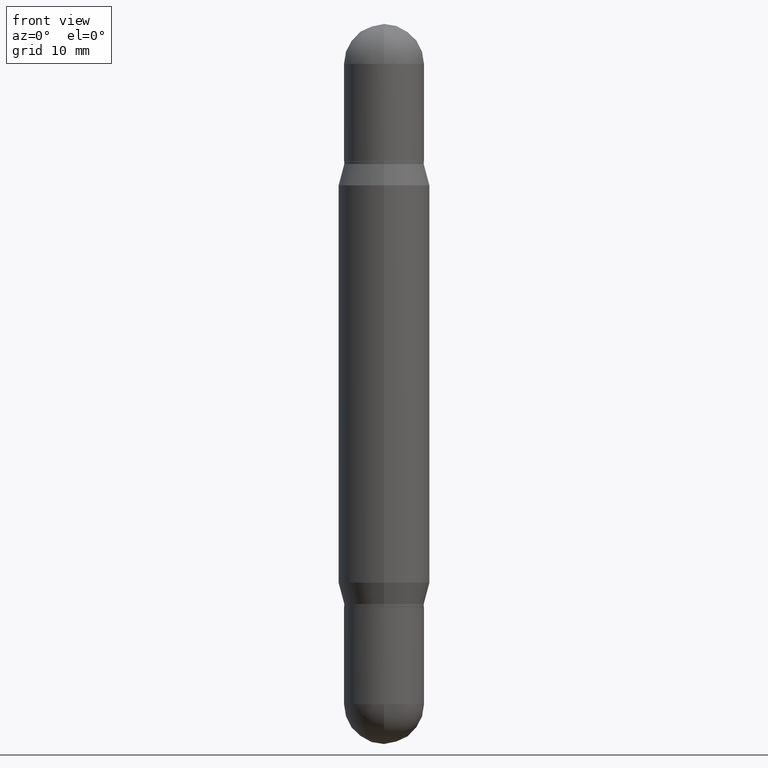
[diagram: clean part render]
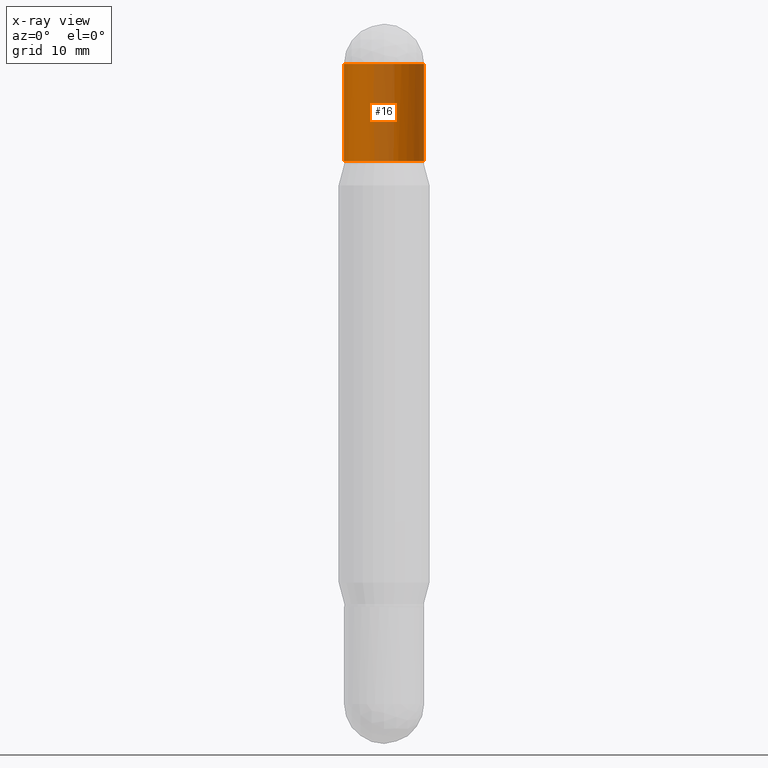
[diagram: x-ray — body ghosted, one internal face saturated and labeled with its STEP entity id]
A machine part, front view, then the same camera in x-ray: the body is ghosted and one INTERNAL B-rep face — a face not visible from any outside direction — is saturated and labeled: STEP entity #16.
In plain terms, the highlighted cylindrical surface (partial cylindrical patch) has radius 3.5001 mm, axis along (-0, -0, -1).
Its self-contained STEP definition (entity closure, byte-faithful):
#16 = ADVANCED_FACE ( 'NONE', ( #518 ), #1030, .T. ) ;
#40 = DIRECTION ( 'NONE',  ( 1.000000000000000000, -6.982962677686267499E-15, 0.000000000000000000 ) ) ;
#43 = DIRECTION ( 'NONE',  ( 2.445468806185136597E-29, 3.479614466977828254E-15, 1.000000000000000000 ) ) ;
#87 = ORIENTED_EDGE ( 'NONE', *, *, #106, .F. ) ;
#89 = CARTESIAN_POINT ( 'NONE',  ( -0.1378000000000000891, -7.699827839495964346E-15, -2.480300000000000171 ) ) ;
#90 = LINE ( 'NONE', #1047, #403 ) ;
#106 = EDGE_CURVE ( 'NONE', #744, #893, #862, .T. ) ;
#118 = EDGE_LOOP ( 'NONE', ( #87, #592, #204, #1111, #1085 ) ) ;
#156 = AXIS2_PLACEMENT_3D ( 'NONE', #195, #43, #1068 ) ;
#195 = CARTESIAN_POINT ( 'NONE',  ( 4.910256815939136430E-29, -1.658486575344099629E-15, -0.4724000000000001531 ) ) ;
#204 = ORIENTED_EDGE ( 'NONE', *, *, #391, .F. ) ;
#225 = CARTESIAN_POINT ( 'NONE',  ( 5.728510678488681895E-29, -4.942075746933196151E-16, -0.1378000000000003666 ) ) ;
#254 = DIRECTION ( 'NONE',  ( -2.445468806185136597E-29, -3.479614466977828254E-15, -1.000000000000000000 ) ) ;
#303 = CARTESIAN_POINT ( 'NONE',  ( -0.1378000000000000891, -1.309704509257909907E-16, -0.1378000000000003666 ) ) ;
#337 = CARTESIAN_POINT ( 'NONE',  ( -0.1378000000000000891, -1.309704509257920754E-16, -0.4724000000000001531 ) ) ;
#351 = EDGE_CURVE ( 'NONE', #692, #744, #676, .T. ) ;
#384 = DIRECTION ( 'NONE',  ( 1.000000000000000000, -6.982962677686267499E-15, 0.000000000000000000 ) ) ;
#391 = EDGE_CURVE ( 'NONE', #424, #692, #708, .T. ) ;
#400 = DIRECTION ( 'NONE',  ( 2.445468806185136597E-29, 3.479614466977828254E-15, 1.000000000000000000 ) ) ;
#403 = VECTOR ( 'NONE', #945, 39.37007874015748143 ) ;
#424 = VERTEX_POINT ( 'NONE', #570 ) ;
#469 = DIRECTION ( 'NONE',  ( 2.445468806185136597E-29, 3.479614466977828254E-15, 1.000000000000000000 ) ) ;
#518 = FACE_OUTER_BOUND ( 'NONE', #118, .T. ) ;
#538 = CARTESIAN_POINT ( 'NONE',  ( 0.1378000000000000891, -2.620738832329267501E-15, -0.4724000000000001531 ) ) ;
#548 = AXIS2_PLACEMENT_3D ( 'NONE', #1012, #400, #384 ) ;
#570 = CARTESIAN_POINT ( 'NONE',  ( 0.1378000000000000891, -2.038599332003877247E-15, -0.1378000000000003666 ) ) ;
#583 = AXIS2_PLACEMENT_3D ( 'NONE', #225, #469, #40 ) ;
#592 = ORIENTED_EDGE ( 'NONE', *, *, #351, .F. ) ;
#613 = VECTOR ( 'NONE', #700, 39.37007874015748143 ) ;
#638 = CIRCLE ( 'NONE', #156, 0.1378000000000000891 ) ;
#676 = CIRCLE ( 'NONE', #548, 0.1378000000000000891 ) ;
#692 = VERTEX_POINT ( 'NONE', #1050 ) ;
#700 = DIRECTION ( 'NONE',  ( -2.445468806185136877E-29, -3.479614466977828648E-15, -1.000000000000000000 ) ) ;
#708 = CIRCLE ( 'NONE', #583, 0.1378000000000000891 ) ;
#718 = VERTEX_POINT ( 'NONE', #538 ) ;
#740 = EDGE_CURVE ( 'NONE', #718, #893, #638, .T. ) ;
#744 = VERTEX_POINT ( 'NONE', #303 ) ;
#775 = CARTESIAN_POINT ( 'NONE',  ( 0.000000000000000000, -8.645204463588881794E-15, -2.480300000000000171 ) ) ;
#862 = LINE ( 'NONE', #89, #613 ) ;
#893 = VERTEX_POINT ( 'NONE', #337 ) ;
#931 = DIRECTION ( 'NONE',  ( 1.000000000000000000, -6.982962677686269077E-15, 0.000000000000000000 ) ) ;
#938 = AXIS2_PLACEMENT_3D ( 'NONE', #775, #254, #931 ) ;
#945 = DIRECTION ( 'NONE',  ( -2.445468806185136877E-29, -3.479614466977828648E-15, -1.000000000000000000 ) ) ;
#1012 = CARTESIAN_POINT ( 'NONE',  ( 5.728510678488681895E-29, -4.942075746933196151E-16, -0.1378000000000003666 ) ) ;
#1030 = CYLINDRICAL_SURFACE ( 'NONE', #938, 0.1378000000000000891 ) ;
#1041 = EDGE_CURVE ( 'NONE', #424, #718, #90, .T. ) ;
#1047 = CARTESIAN_POINT ( 'NONE',  ( 0.1378000000000000891, -9.607456720574050849E-15, -2.480300000000000171 ) ) ;
#1050 = CARTESIAN_POINT ( 'NONE',  ( 9.622522569852254583E-16, 0.1377999999999996172, -0.1378000000000008385 ) ) ;
#1068 = DIRECTION ( 'NONE',  ( 1.000000000000000000, -6.982962677686265922E-15, 0.000000000000000000 ) ) ;
#1085 = ORIENTED_EDGE ( 'NONE', *, *, #740, .T. ) ;
#1111 = ORIENTED_EDGE ( 'NONE', *, *, #1041, .T. ) ;